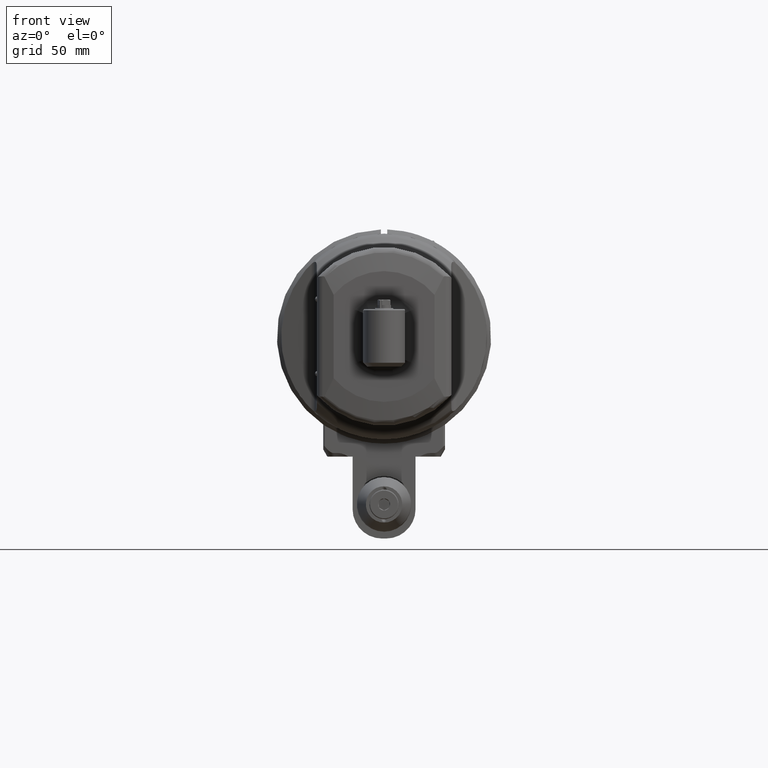
[diagram: clean part render]
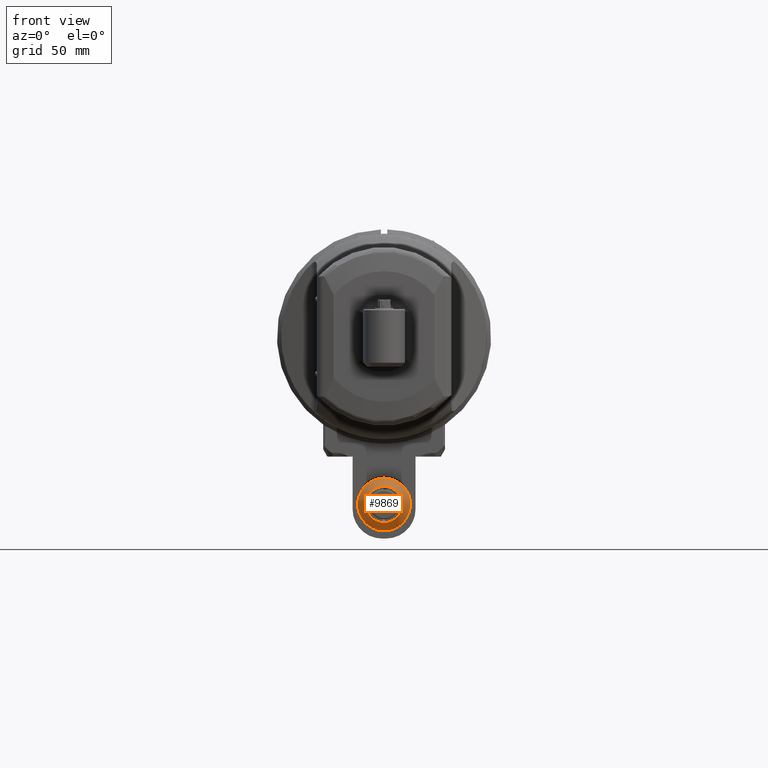
[diagram: same view with one face highlighted and labeled with its STEP entity id]
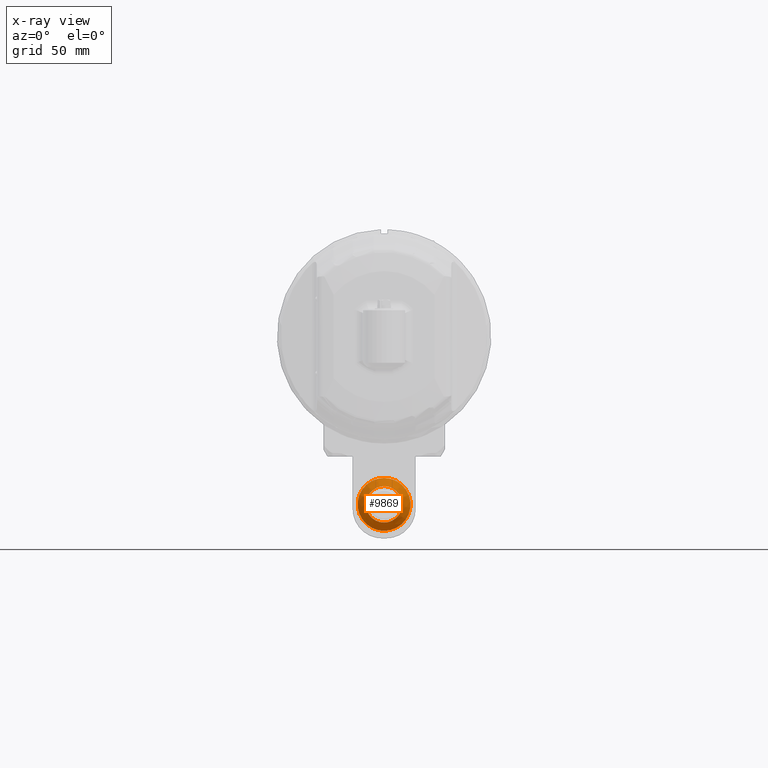
[diagram: x-ray of the same camera — body ghosted, the highlighted face saturated]
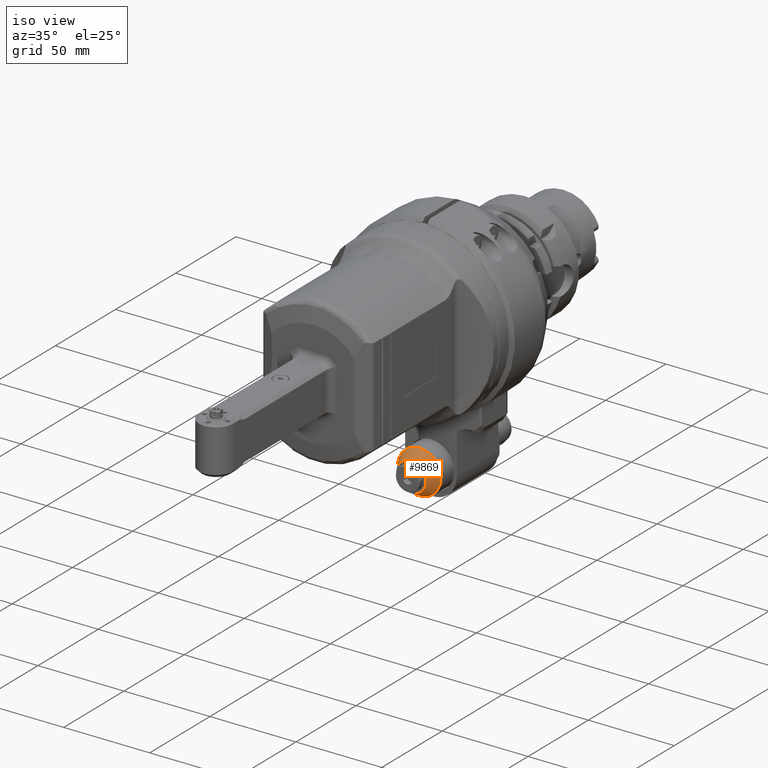
[diagram: same view with one face highlighted and labeled with its STEP entity id]
A machine part, front view. The second image highlights one B-rep face of the part: STEP entity #9869.
The next image is the same camera in x-ray: the body ghosted, the highlighted face saturated — about 0% of this face is hidden behind the body in this view.
A second angle (iso view) of the same face is appended — the face is thin or edge-on in the first view.
In plain terms, the highlighted conical surface has half-angle 30 deg.
Its self-contained STEP definition (entity closure, byte-faithful):
#827=CONICAL_SURFACE('',#10820,10.63397459622,0.523598775598299);
#1191=FACE_OUTER_BOUND('',#1803,.T.);
#1803=EDGE_LOOP('',(#8182,#8183,#8184,#8185));
#2342=CIRCLE('',#10819,12.59807621135);
#2343=CIRCLE('',#10821,8.669872981078);
#3124=LINE('',#17037,#3796);
#3796=VECTOR('',#12851,10.63397459622);
#4630=VERTEX_POINT('',#17032);
#4631=VERTEX_POINT('',#17036);
#5874=EDGE_CURVE('',#4630,#4630,#2342,.T.);
#5875=EDGE_CURVE('',#4630,#4631,#3124,.T.);
#5876=EDGE_CURVE('',#4631,#4631,#2343,.T.);
#8182=ORIENTED_EDGE('',*,*,#5874,.F.);
#8183=ORIENTED_EDGE('',*,*,#5875,.T.);
#8184=ORIENTED_EDGE('',*,*,#5876,.F.);
#8185=ORIENTED_EDGE('',*,*,#5875,.F.);
#9869=ADVANCED_FACE('',(#1191),#827,.T.);
#10819=AXIS2_PLACEMENT_3D('',#17034,#12847,#12848);
#10820=AXIS2_PLACEMENT_3D('',#17035,#12849,#12850);
#10821=AXIS2_PLACEMENT_3D('',#17038,#12852,#12853);
#12847=DIRECTION('center_axis',(0.,1.,0.));
#12848=DIRECTION('ref_axis',(0.,0.,-1.));
#12849=DIRECTION('center_axis',(0.,1.,0.));
#12850=DIRECTION('ref_axis',(0.,0.,1.));
#12851=DIRECTION('',(6.12323399573676E-17,-0.866025403784439,0.5));
#12852=DIRECTION('center_axis',(0.,-1.,0.));
#12853=DIRECTION('ref_axis',(0.,0.,1.));
#17032=CARTESIAN_POINT('',(0.,-4.696152422707,-92.59807621135));
#17034=CARTESIAN_POINT('Origin',(0.,-4.696152422707,-80.));
#17035=CARTESIAN_POINT('Origin',(0.,-8.098076211353,-80.));
#17036=CARTESIAN_POINT('',(0.,-11.5,-88.66987298108));
#17037=CARTESIAN_POINT('',(-1.30228629514751E-15,-8.098076211353,-90.63397459622));
#17038=CARTESIAN_POINT('Origin',(0.,-11.5,-80.));